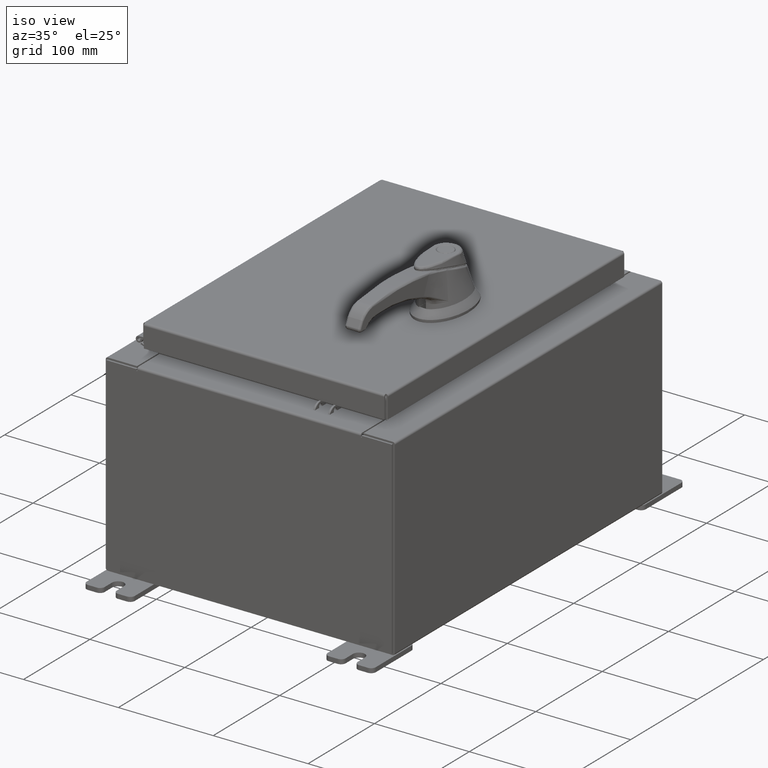
[diagram: clean part render]
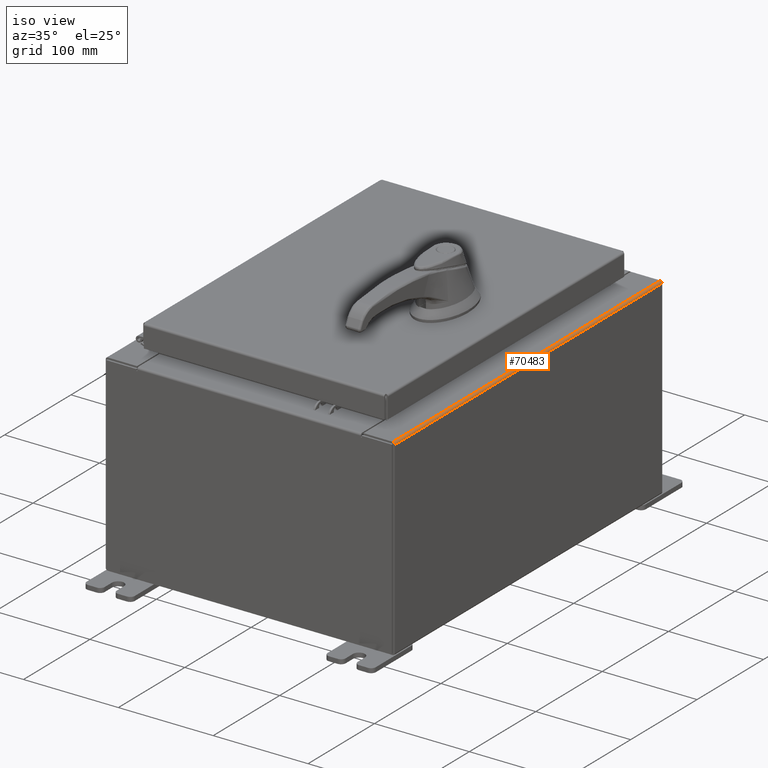
[diagram: same view with one face highlighted and labeled with its STEP entity id]
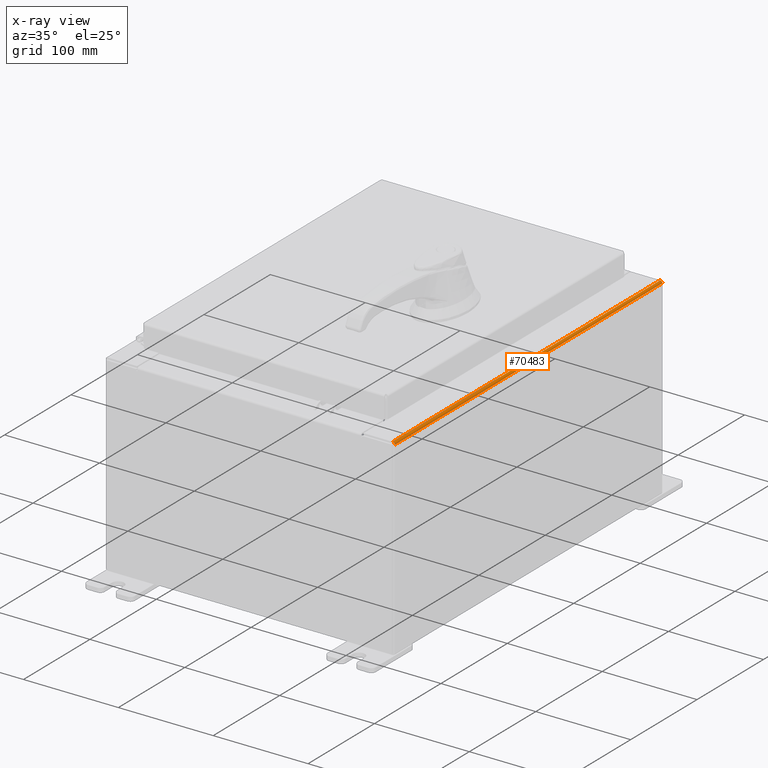
[diagram: x-ray of the same camera — body ghosted, the highlighted face saturated]
A machine part, iso view. The second image highlights one B-rep face of the part: STEP entity #70483.
The next image is the same camera in x-ray: the body ghosted, the highlighted face saturated — about 0% of this face is hidden behind the body in this view.
In plain terms, the highlighted cylindrical surface (edge-blend (fillet) strip) has radius 2.2276 mm, axis along (0, 1, 0).
Its self-contained STEP definition (entity closure, byte-faithful):
#5285 = CYLINDRICAL_SURFACE ( 'NONE', #99711, 0.08770000000000136000 ) ;
#9026 = CARTESIAN_POINT ( 'NONE',  ( 5.912300000000027600, -7.925300000000000900, 7.837599999999999200 ) ) ;
#14970 = CARTESIAN_POINT ( 'NONE',  ( 6.000000000000029300, 7.925300000000000900, 7.837599999999992100 ) ) ;
#17085 = EDGE_CURVE ( 'NONE', #95528, #32987, #17306, .T. ) ;
#17258 = DIRECTION ( 'NONE',  ( 0.0000000000000000000, 0.0000000000000000000, 1.000000000000000000 ) ) ;
#17306 = LINE ( 'NONE', #14970, #101683 ) ;
#18721 = ORIENTED_EDGE ( 'NONE', *, *, #62046, .F. ) ;
#23239 = CARTESIAN_POINT ( 'NONE',  ( 5.912300000000027600, -7.925300000000000900, 7.925300000000000900 ) ) ;
#29365 = CARTESIAN_POINT ( 'NONE',  ( 6.000000000000026600, -7.925300000000000900, 7.837599999999998300 ) ) ;
#32571 = CARTESIAN_POINT ( 'NONE',  ( 5.912300000000027600, 7.925300000000000900, 7.837599999999999200 ) ) ;
#32987 = VERTEX_POINT ( 'NONE', #29365 ) ;
#38283 = CARTESIAN_POINT ( 'NONE',  ( 5.912300000000027600, 7.925300000000000900, 7.925300000000000000 ) ) ;
#45675 = DIRECTION ( 'NONE',  ( -6.893992640440775600E-017, -1.000000000000000000, 6.893992640440816300E-017 ) ) ;
#47938 = CARTESIAN_POINT ( 'NONE',  ( 5.912300000000027600, 7.925300000000000900, 7.837599999999999200 ) ) ;
#52166 = AXIS2_PLACEMENT_3D ( 'NONE', #9026, #66251, #17258 ) ;
#56183 = DIRECTION ( 'NONE',  ( 0.0000000000000000000, 0.0000000000000000000, 1.000000000000000000 ) ) ;
#58338 = ORIENTED_EDGE ( 'NONE', *, *, #72072, .F. ) ;
#58712 = AXIS2_PLACEMENT_3D ( 'NONE', #47938, #105100, #56183 ) ;
#58804 = VERTEX_POINT ( 'NONE', #38283 ) ;
#60854 = ORIENTED_EDGE ( 'NONE', *, *, #17085, .F. ) ;
#61508 = VECTOR ( 'NONE', #45675, 39.37007874015748100 ) ;
#62046 = EDGE_CURVE ( 'NONE', #32987, #67264, #66839, .T. ) ;
#64114 = EDGE_CURVE ( 'NONE', #58804, #67264, #102397, .T. ) ;
#66251 = DIRECTION ( 'NONE',  ( -0.0000000000000000000, -1.000000000000000000, -0.0000000000000000000 ) ) ;
#66839 = CIRCLE ( 'NONE', #52166, 0.08770000000000136000 ) ;
#67264 = VERTEX_POINT ( 'NONE', #23239 ) ;
#70483 = ADVANCED_FACE ( 'NONE', ( #94829 ), #5285, .T. ) ;
#72072 = EDGE_CURVE ( 'NONE', #58804, #95528, #104856, .T. ) ;
#79457 = CARTESIAN_POINT ( 'NONE',  ( 6.000000000000029300, 7.925300000000000900, 7.837599999999992100 ) ) ;
#80366 = DIRECTION ( 'NONE',  ( -0.0000000000000000000, -1.000000000000000000, -0.0000000000000000000 ) ) ;
#81525 = DIRECTION ( 'NONE',  ( 1.245996804407854400E-014, 0.0000000000000000000, 1.000000000000000000 ) ) ;
#86369 = CARTESIAN_POINT ( 'NONE',  ( 5.912300000000026800, -7.925300000000000900, 7.925300000000000900 ) ) ;
#89770 = DIRECTION ( 'NONE',  ( 0.0000000000000000000, 1.000000000000000000, 0.0000000000000000000 ) ) ;
#89963 = EDGE_LOOP ( 'NONE', ( #60854, #58338, #102824, #18721 ) ) ;
#94829 = FACE_OUTER_BOUND ( 'NONE', #89963, .T. ) ;
#95528 = VERTEX_POINT ( 'NONE', #79457 ) ;
#99711 = AXIS2_PLACEMENT_3D ( 'NONE', #32571, #89770, #81525 ) ;
#101683 = VECTOR ( 'NONE', #80366, 39.37007874015748100 ) ;
#102397 = LINE ( 'NONE', #86369, #61508 ) ;
#102824 = ORIENTED_EDGE ( 'NONE', *, *, #64114, .T. ) ;
#104856 = CIRCLE ( 'NONE', #58712, 0.08770000000000136000 ) ;
#105100 = DIRECTION ( 'NONE',  ( 0.0000000000000000000, 1.000000000000000000, 0.0000000000000000000 ) ) ;